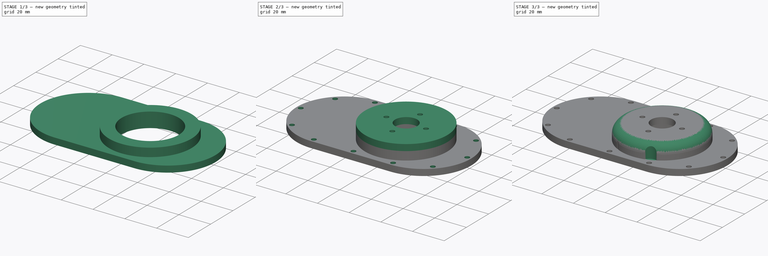
[diagram: build sequence overview — one tinted view per stage of 3, left to right]
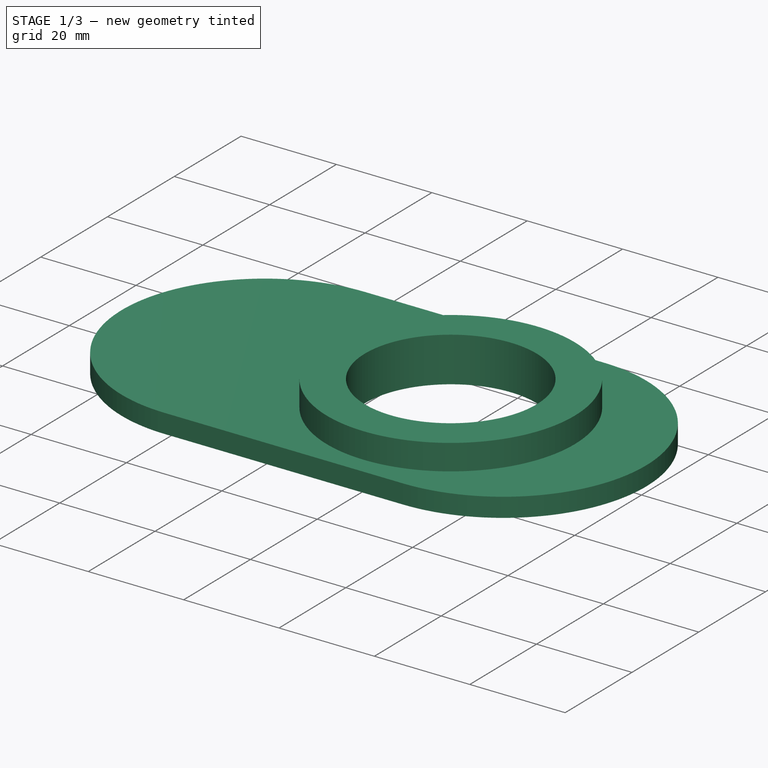
[diagram: stage 1 of 3 — iso view after this stage's code; geometry added in this stage tinted green]
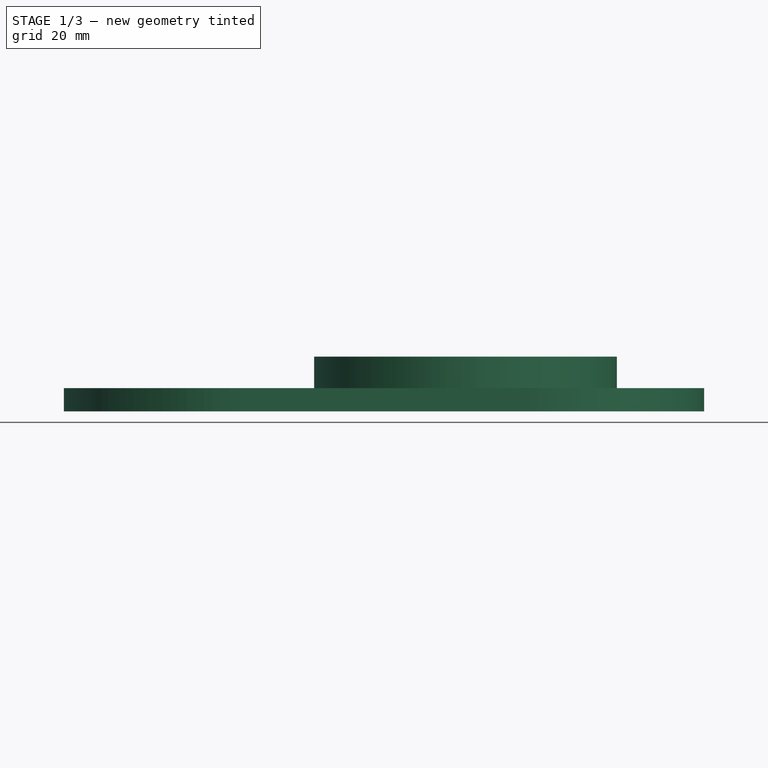
[diagram: stage 1 of 3 — front view after this stage's code; geometry added in this stage tinted green]
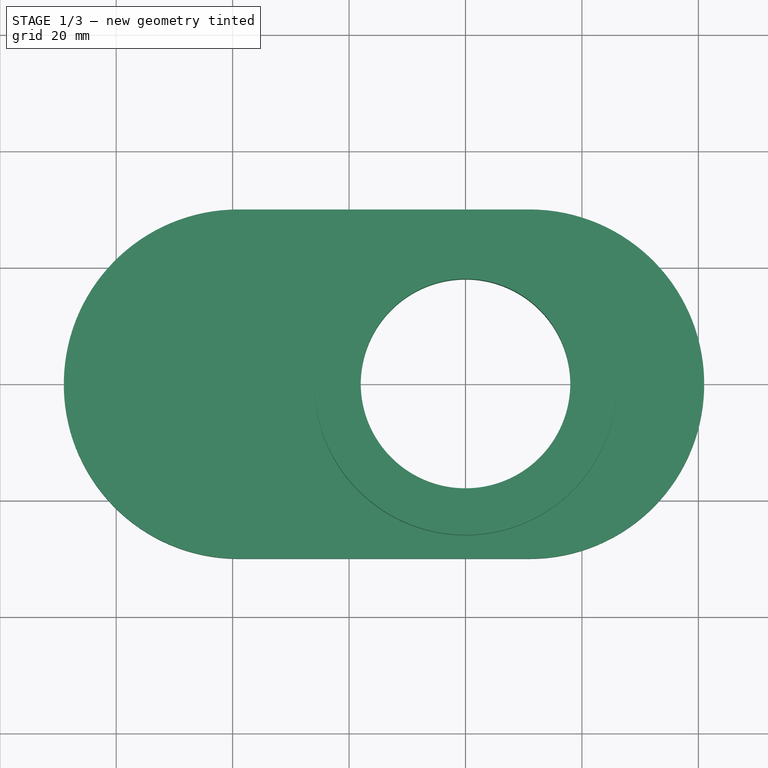
[diagram: stage 1 of 3 — top view after this stage's code; geometry added in this stage tinted green]
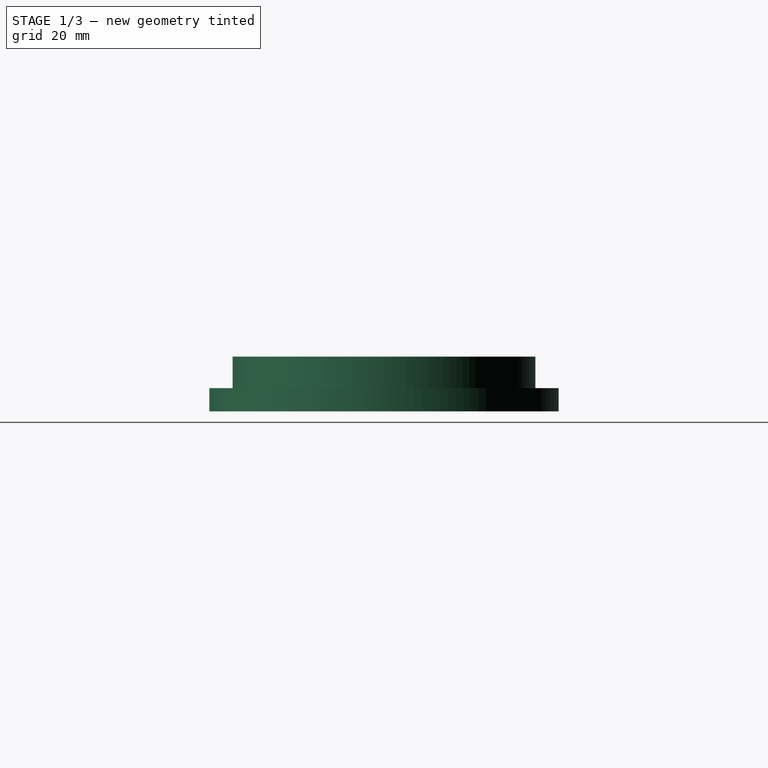
[diagram: stage 1 of 3 — right view after this stage's code; geometry added in this stage tinted green]
FCSTD DOCUMENT  (FreeCAD 0.17R13522 (Git))
Label: MotorMount
License: All rights reserved
LicenseURL: http://en.wikipedia.org/wiki/All_rights_reserved
objects: Sketcher::SketchObject×6, PartDesign::Pad×3, PartDesign::Pocket×3, PartDesign::Fillet×1, PartDesign::Body×1, App::Part×1
note: 20 computed .brp shape members not serialized (recipe doc carries the construction recipe); baked Part::Feature solids carry a one-line shape summary decoded from their .brp

FEATURE [Sketcher::SketchObject] Sketch
  MapMode = 5
  Support = -> [XY_Plane001]
  sketch-geometry (6):
    g0: Circle CenterX=0 CenterY=0 CenterZ=0 NormalX=0 NormalY=0 NormalZ=1 AngleXU=0 Radius=18
    g1: ArcOfCircle CenterX=-39 CenterY=0 CenterZ=0 NormalX=0 NormalY=0 NormalZ=1 AngleXU=0 Radius=30 StartAngle=1.5708 EndAngle=4.71239
    g2: ArcOfCircle CenterX=11 CenterY=0 CenterZ=0 NormalX=0 NormalY=0 NormalZ=1 AngleXU=0 Radius=30 StartAngle=4.71239 EndAngle=7.85398
    g3: LineSegment StartX=-39 StartY=-30 StartZ=0 EndX=11 EndY=-30 EndZ=0
    g4: LineSegment StartX=-39 StartY=30 StartZ=0 EndX=11 EndY=30 EndZ=0
    g5: GeomPoint X=41 Y=0 Z=0
  constraints (15):
    c: Radius(g0) = 18
    c: Tangent(g1,g4) = 1.5708
    c: Tangent(g1,g3) = -1.5708
    c: Tangent(g3,g2) = -1.5708
    c: Tangent(g4,g2) = 1.5708
    c: Horizontal(g3)
    c: Equal(g1,g2)
    c: PointOnObject(g1,g-1)
    c: DistanceY(g2,g2) = 60
    c: PointOnObject(g5,g2)
    c: PointOnObject(g5,g-1)
    c: PointOnObject(g0,g-1)
    c: DistanceX(g0,g5) = 41
    c: Coincident(g0,g-1)
    c: DistanceX(g1,g2) = 50
FEATURE [PartDesign::Pad] Pad
  Length = 4
  Length2 = 100
  Profile = -> Sketch
  Type = 0
FEATURE [Sketcher::SketchObject] Sketch002
  ExternalGeometry = -> [Pad]
  MapMode = 5
  Placement = pos=(0,0,4) rot=(0,0,1;0rad)
  Support = -> [Pad]
  sketch-geometry (2):
    g0: Circle CenterX=0 CenterY=0 CenterZ=0 NormalX=0 NormalY=0 NormalZ=1 AngleXU=0 Radius=18
    g1: Circle CenterX=0 CenterY=0 CenterZ=0 NormalX=0 NormalY=0 NormalZ=1 AngleXU=0 Radius=26
  constraints (4):
    c: Coincident(g0,g-1)
    c: Coincident(g1,g-1)
    c: Equal(g0,g-3)
    c: Radius(g1) = 26
FEATURE [PartDesign::Pad] Pad001
  BaseFeature = -> Pad
  Length = 5.4
  Length2 = 100
  Profile = -> Sketch002
  Type = 0
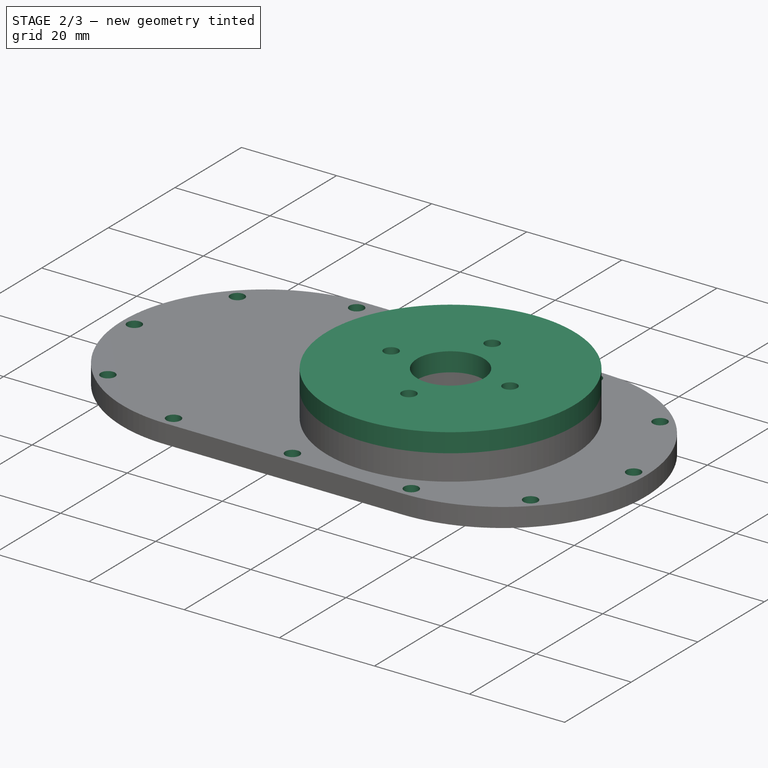
[diagram: stage 2 of 3 — iso view after this stage's code; geometry added in this stage tinted green]
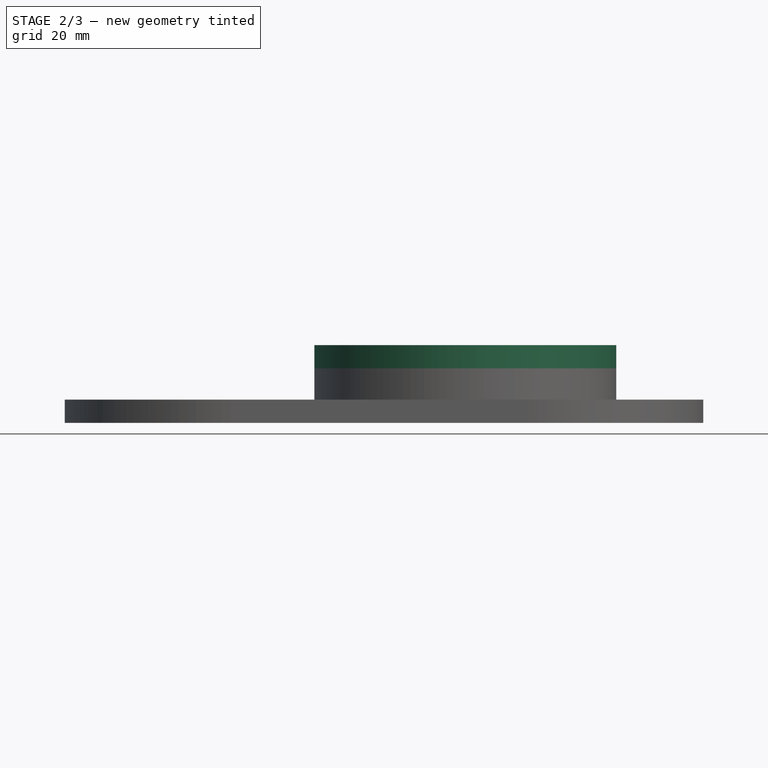
[diagram: stage 2 of 3 — front view after this stage's code; geometry added in this stage tinted green]
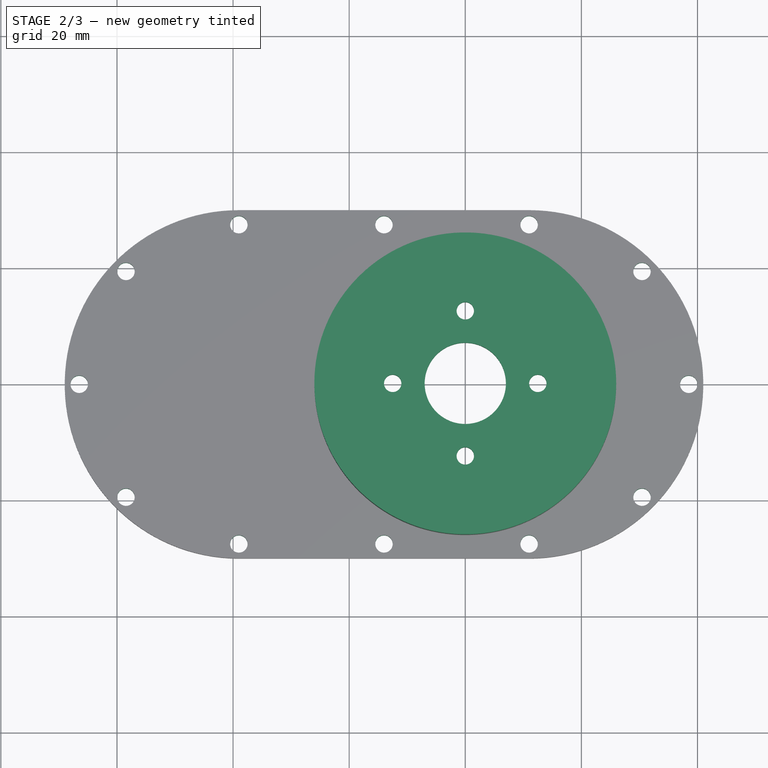
[diagram: stage 2 of 3 — top view after this stage's code; geometry added in this stage tinted green]
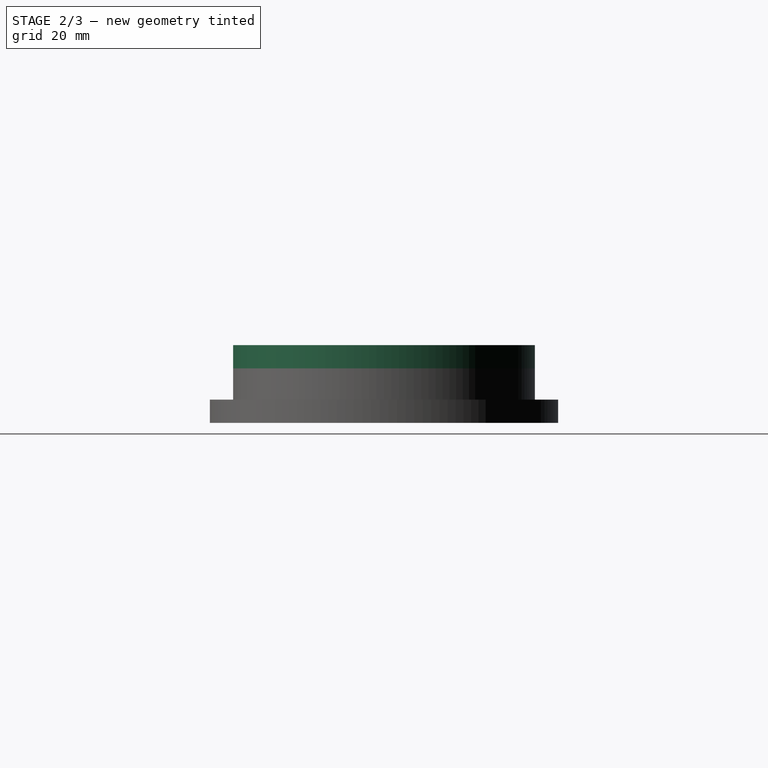
[diagram: stage 2 of 3 — right view after this stage's code; geometry added in this stage tinted green]
FEATURE [Sketcher::SketchObject] Sketch003
  ExternalGeometry = -> [Pad001]
  MapMode = 5
  Placement = pos=(0,0,9.4) rot=(0,0,1;0rad)
  Support = -> [Pad001]
  sketch-geometry (1):
    g0: Circle CenterX=0 CenterY=0 CenterZ=0 NormalX=0 NormalY=0 NormalZ=1 AngleXU=0 Radius=26
  constraints (2):
    c: Coincident(g0,g-1)
    c: Equal(g0,g-3)
FEATURE [PartDesign::Pad] Pad002
  BaseFeature = -> Pad001
  Length = 4
  Length2 = 100
  Profile = -> Sketch003
  Type = 0
FEATURE [Sketcher::SketchObject] Sketch004
  MapMode = 5
  Placement = pos=(0,0,13.4) rot=(0,0,1;0rad)
  Support = -> [Pad002]
  sketch-geometry (6):
    g0: Circle [constr] CenterX=0 CenterY=0 CenterZ=0 NormalX=0 NormalY=0 NormalZ=1 AngleXU=0 Radius=12.5
    g1: Circle CenterX=12.5 CenterY=0 CenterZ=0 NormalX=0 NormalY=0 NormalZ=1 AngleXU=0 Radius=1.5
    g2: Circle CenterX=-12.5 CenterY=0 CenterZ=0 NormalX=0 NormalY=0 NormalZ=1 AngleXU=0 Radius=1.5
    g3: Circle CenterX=0 CenterY=12.5 CenterZ=0 NormalX=0 NormalY=0 NormalZ=1 AngleXU=0 Radius=1.5
    g4: Circle CenterX=0 CenterY=-12.5 CenterZ=0 NormalX=0 NormalY=0 NormalZ=1 AngleXU=0 Radius=1.5
    g5: Circle CenterX=0 CenterY=0 CenterZ=0 NormalX=0 NormalY=0 NormalZ=1 AngleXU=0 Radius=7
  constraints (16):
    c: Coincident(g0,g-1)
    c: Radius(g0) = 12.5
    c: PointOnObject(g1,g0)
    c: PointOnObject(g2,g0)
    c: PointOnObject(g3,g0)
    c: PointOnObject(g4,g0)
    c: PointOnObject(g2,g-1)
    c: PointOnObject(g1,g-1)
    c: PointOnObject(g4,g-2)
    c: PointOnObject(g3,g-2)
    c: Radius(g1) = 1.5
    c: Equal(g1,g4)
    c: Equal(g1,g2)
    c: Equal(g1,g3)
    c: Coincident(g5,g-1)
    c: Radius(g5) = 7
FEATURE [PartDesign::Pocket] Pocket
  BaseFeature = -> Pad002
  Length = 5
  Length2 = 100
  Profile = -> Sketch004
  Type = 0
FEATURE [Sketcher::SketchObject] Sketch005
  ExternalGeometry = -> [Pocket]
  MapMode = 5
  Placement = pos=(0,0,0) rot=(1,0,0;3.14159rad)
  Support = -> [Pocket]
  sketch-geometry (21):
    g0: ArcOfCircle [constr] CenterX=-39 CenterY=0 CenterZ=0 NormalX=0 NormalY=0 NormalZ=1 AngleXU=0 Radius=27.5 StartAngle=1.5708 EndAngle=4.71239
    g1: ArcOfCircle [constr] CenterX=11 CenterY=0 CenterZ=0 NormalX=0 NormalY=0 NormalZ=1 AngleXU=0 Radius=27.5 StartAngle=4.71239 EndAngle=7.85398
    g2: LineSegment [constr] StartX=-39 StartY=-27.5 StartZ=0 EndX=11 EndY=-27.5 EndZ=0
    g3: LineSegment [constr] StartX=-39 StartY=27.5 StartZ=0 EndX=11 EndY=27.5 EndZ=0
    g4: LineSegment [constr] StartX=11 StartY=-30 StartZ=0 EndX=11 EndY=-27.5 EndZ=0
    g5: Circle CenterX=-39 CenterY=27.5 CenterZ=0 NormalX=0 NormalY=0 NormalZ=1 AngleXU=0 Radius=1.5
    g6: Circle CenterX=-14 CenterY=27.5 CenterZ=0 NormalX=0 NormalY=0 NormalZ=1 AngleXU=0 Radius=1.5
    g7: Circle CenterX=11 CenterY=27.5 CenterZ=0 NormalX=0 NormalY=0 NormalZ=1 AngleXU=0 Radius=1.5
    g8: Circle CenterX=30.4454 CenterY=19.4454 CenterZ=0 NormalX=0 NormalY=0 NormalZ=1 AngleXU=0 Radius=1.5
    g9: Circle CenterX=38.5 CenterY=0 CenterZ=0 NormalX=0 NormalY=0 NormalZ=1 AngleXU=0 Radius=1.5
    g10: Circle CenterX=30.4454 CenterY=-19.4454 CenterZ=0 NormalX=0 NormalY=0 NormalZ=1 AngleXU=0 Radius=1.5
    g11: Circle CenterX=11 CenterY=-27.5 CenterZ=0 NormalX=0 NormalY=0 NormalZ=1 AngleXU=0 Radius=1.5
    g12: Circle CenterX=-14 CenterY=-27.5 CenterZ=0 NormalX=0 NormalY=0 NormalZ=1 AngleXU=0 Radius=1.5
    g13: Circle CenterX=-39 CenterY=-27.5 CenterZ=0 NormalX=0 NormalY=0 NormalZ=1 AngleXU=0 Radius=1.5
    g14: Circle CenterX=-58.4454 CenterY=-19.4454 CenterZ=0 NormalX=0 NormalY=0 NormalZ=1 AngleXU=0 Radius=1.5
    g15: Circle CenterX=-66.5 CenterY=0 CenterZ=0 NormalX=0 NormalY=0 NormalZ=1 AngleXU=0 Radius=1.5
    g16: Circle CenterX=-58.4454 CenterY=19.4454 CenterZ=0 NormalX=0 NormalY=0 NormalZ=1 AngleXU=0 Radius=1.5
    g17: LineSegment [constr] StartX=-58.4454 StartY=19.4454 StartZ=0 EndX=-39 EndY=0 EndZ=0
    g18: LineSegment [constr] StartX=-39 StartY=0 StartZ=0 EndX=-58.4454 EndY=-19.4454 EndZ=0
    g19: LineSegment [constr] StartX=11 StartY=0 StartZ=0 EndX=30.4454 EndY=19.4454 EndZ=0
    g20: LineSegment [constr] StartX=11 StartY=0 StartZ=0 EndX=30.4454 EndY=-19.4454 EndZ=0
  constraints (51):
    c: Tangent(g0,g3) = 1.5708
    c: Tangent(g0,g2) = -1.5708
    c: Tangent(g2,g1) = -1.5708
    c: Tangent(g3,g1) = 1.5708
    c: Horizontal(g2)
    c: Equal(g0,g1)
    c: Coincident(g0,g-3)
    c: Coincident(g4,g-4)
    c: Coincident(g4,g1)
    c: Vertical(g4)
    c: DistanceY(g4,g4) = 2.5
    c: Coincident(g5,g0)
    c: PointOnObject(g6,g3)
    c: Coincident(g7,g1)
    c: PointOnObject(g8,g1)
    c: PointOnObject(g9,g1)
    c: PointOnObject(g10,g1)
    c: Coincident(g11,g1)
    c: PointOnObject(g12,g2)
    c: Coincident(g13,g0)
    c: PointOnObject(g14,g0)
    c: PointOnObject(g15,g0)
    c: PointOnObject(g16,g0)
    c: Coincident(g17,g16)
    c: Coincident(g17,g0)
    c: Coincident(g18,g0)
    c: Coincident(g18,g14)
    c: Coincident(g19,g1)
    c: Coincident(g19,g8)
    c: Coincident(g20,g1)
    c: Coincident(g20,g10)
    c: Angle(g20,g19) = 1.5708
    c: Angle(g17,g18) = 1.5708
    c: Radius(g14) = 1.5
    c: Equal(g14,g16)
    c: Equal(g14,g8)
    c: Equal(g14,g10)
    c: PointOnObject(g15,g-1)
    c: PointOnObject(g9,g-1)
    c: Radius(g5) = 1.5
    c: Equal(g5,g6)
    c: Equal(g5,g7)
    c: Equal(g5,g9)
    c: Equal(g5,g11)
    c: Equal(g5,g12)
    c: Equal(g5,g13)
    c: Equal(g5,g15)
    c: Symmetric(g0,g1,g6)
    c: Symmetric(g0,g1,g12)
    c: Angle(g-1,g17) = 2.35619
    c: Angle(g19,g-1) = 2.35619
FEATURE [PartDesign::Pocket] Pocket001
  BaseFeature = -> Pocket
  Length = 5
  Length2 = 100
  Profile = -> Sketch005
  Type = 0
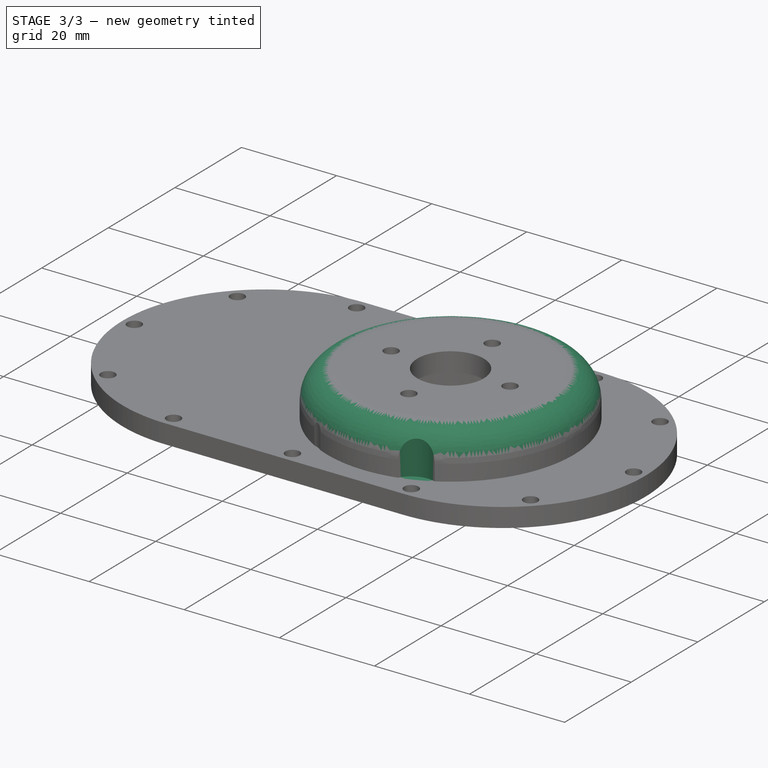
[diagram: stage 3 of 3 — iso view after this stage's code; geometry added in this stage tinted green]
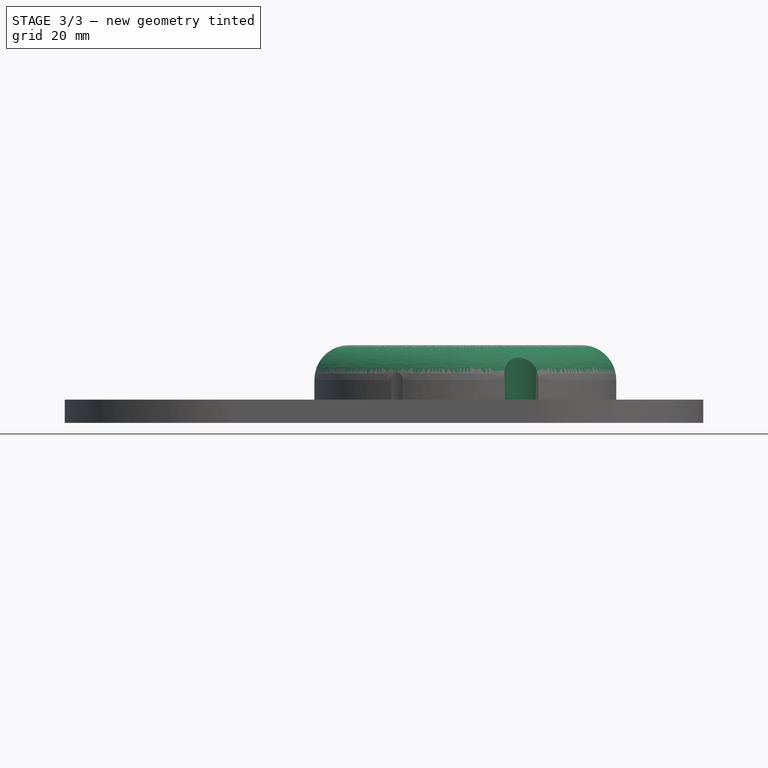
[diagram: stage 3 of 3 — front view after this stage's code; geometry added in this stage tinted green]
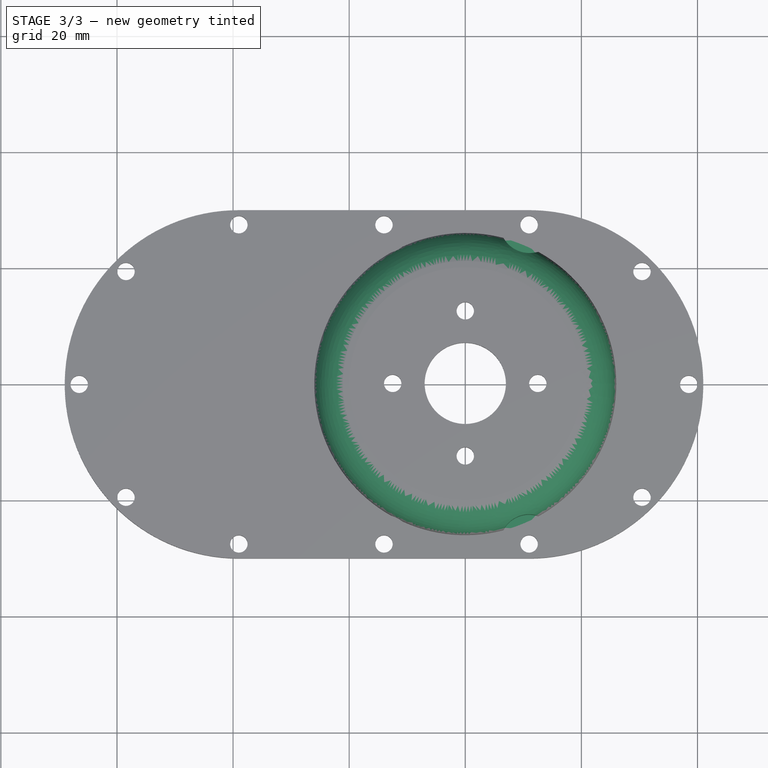
[diagram: stage 3 of 3 — top view after this stage's code; geometry added in this stage tinted green]
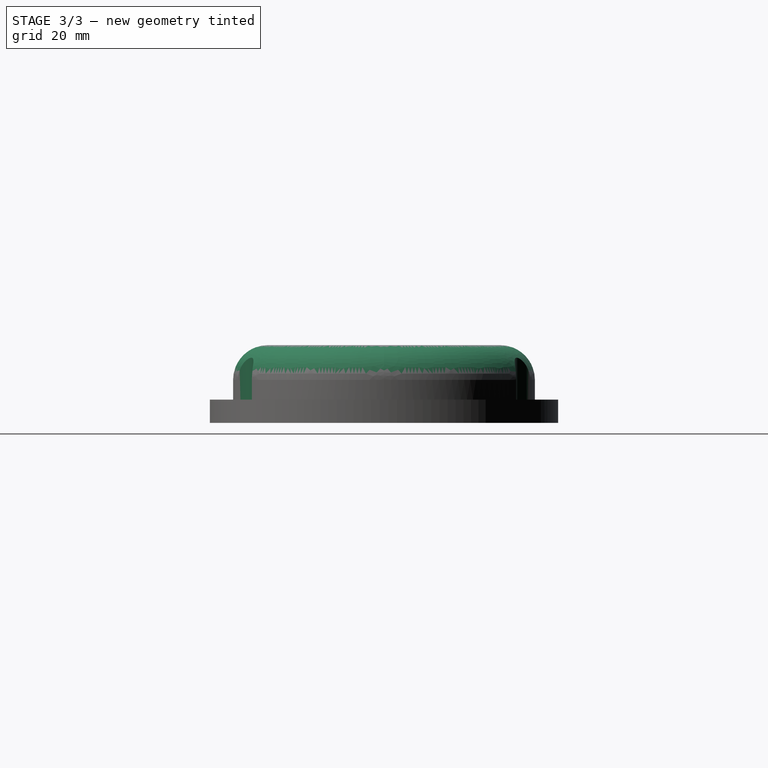
[diagram: stage 3 of 3 — right view after this stage's code; geometry added in this stage tinted green]
FEATURE [PartDesign::Fillet] Fillet
  Base = -> Pocket001 [Edge58]
  BaseFeature = -> Pocket001
  Radius = 6
FEATURE [Sketcher::SketchObject] Sketch006
  ExternalGeometry = -> [Fillet]
  MapMode = 5
  Placement = pos=(0,0,4) rot=(0,0,1;0rad)
  Support = -> [Fillet]
  sketch-geometry (8):
    g0: ArcOfCircle [constr] CenterX=-39 CenterY=0 CenterZ=0 NormalX=0 NormalY=0 NormalZ=1 AngleXU=0 Radius=27.5 StartAngle=1.5708 EndAngle=4.71239
    g1: ArcOfCircle [constr] CenterX=11 CenterY=3.4e-11 CenterZ=0 NormalX=0 NormalY=0 NormalZ=1 AngleXU=0 Radius=27.5 StartAngle=4.71239 EndAngle=7.85398
    g2: LineSegment [constr] StartX=-39 StartY=-27.5 StartZ=0 EndX=11 EndY=-27.5 EndZ=0
    g3: LineSegment [constr] StartX=-39 StartY=27.5 StartZ=0 EndX=11 EndY=27.5 EndZ=0
    g4: Circle CenterX=-14 CenterY=27.5 CenterZ=0 NormalX=0 NormalY=0 NormalZ=1 AngleXU=0 Radius=5
    g5: Circle CenterX=11 CenterY=27.5 CenterZ=0 NormalX=0 NormalY=0 NormalZ=1 AngleXU=0 Radius=5
    g6: Circle CenterX=11 CenterY=-27.5 CenterZ=0 NormalX=0 NormalY=0 NormalZ=1 AngleXU=0 Radius=5
    g7: Circle CenterX=-14 CenterY=-27.5 CenterZ=0 NormalX=0 NormalY=0 NormalZ=1 AngleXU=0 Radius=5
  constraints (17):
    c: Tangent(g0,g3) = 1.5708
    c: Tangent(g0,g2) = -1.5708
    c: Tangent(g2,g1) = -1.5708
    c: Tangent(g3,g1) = 1.5708
    c: Horizontal(g2)
    c: Equal(g0,g1)
    c: PointOnObject(g0,g-1)
    c: Coincident(g0,g-3)
    c: Coincident(g1,g-5)
    c: Coincident(g4,g-6)
    c: Coincident(g5,g1)
    c: Coincident(g6,g1)
    c: Coincident(g7,g-8)
    c: Radius(g7) = 5
    c: Equal(g7,g6)
    c: Equal(g7,g4)
    c: Equal(g7,g5)
FEATURE [PartDesign::Pocket] Pocket002
  BaseFeature = -> Fillet
  Length = 15
  Length2 = 100
  Profile = -> Sketch006
  Reversed = true
  Type = 0
FEATURE [PartDesign::Body] Body
  Group = -> [Pad,Sketch,Sketch002,Pad001,Sketch003,Pad002,Sketch004,Pocket,Sketch005,Pocket001,Fillet,Sketch006,Pocket002]
  Origin = -> Origin001
  Tip = -> Pocket002
FEATURE [App::Part] Part
  Group = -> [Body]
  License = CC BY 3.0
  LicenseURL = http://creativecommons.org/licenses/by/3.0/
  Origin = -> Origin
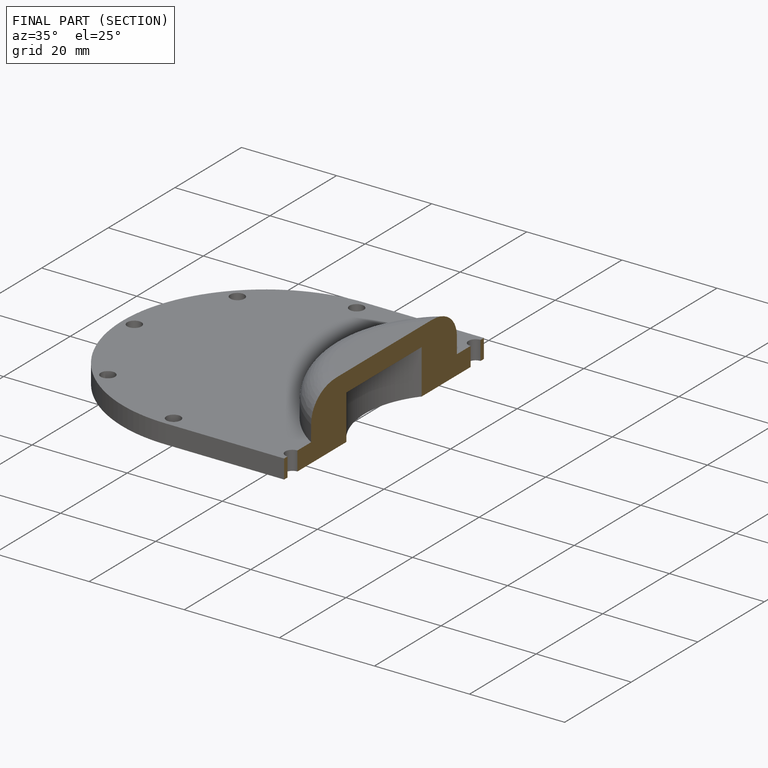
[diagram: finished part — half-section view (interior)]
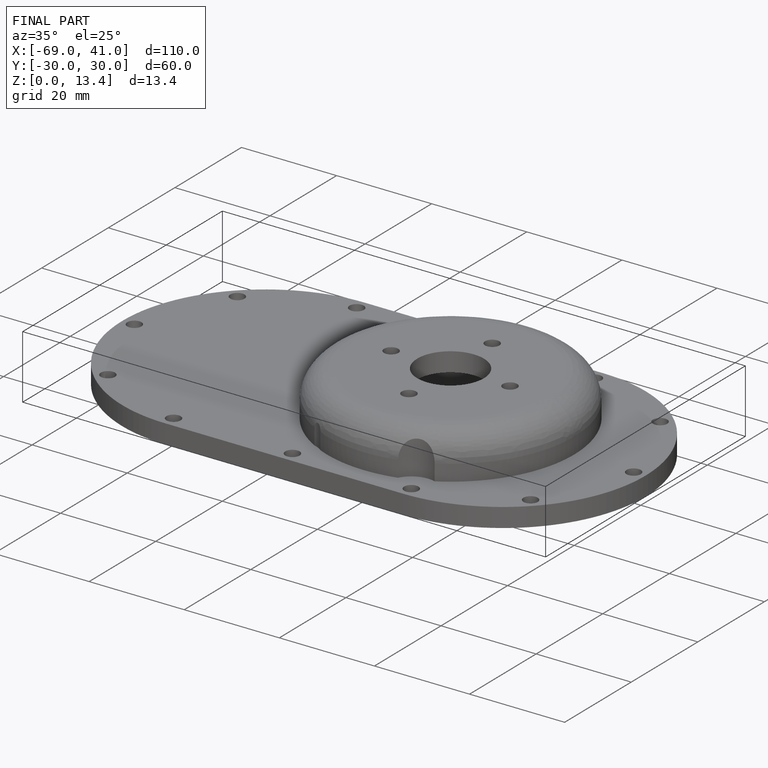
[diagram: finished part — iso view with bounding-box wireframe]
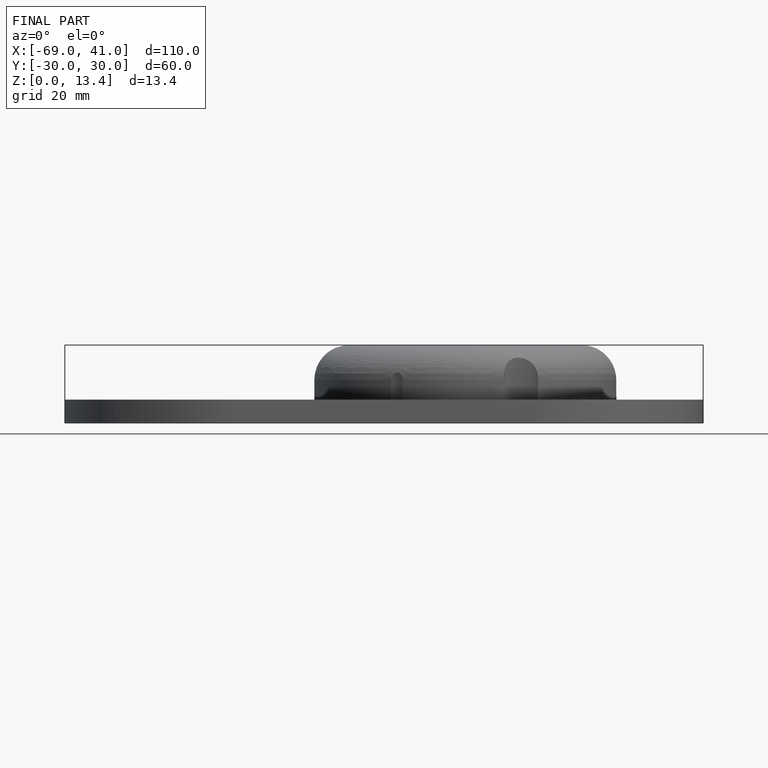
[diagram: finished part — front view with bounding-box wireframe]
